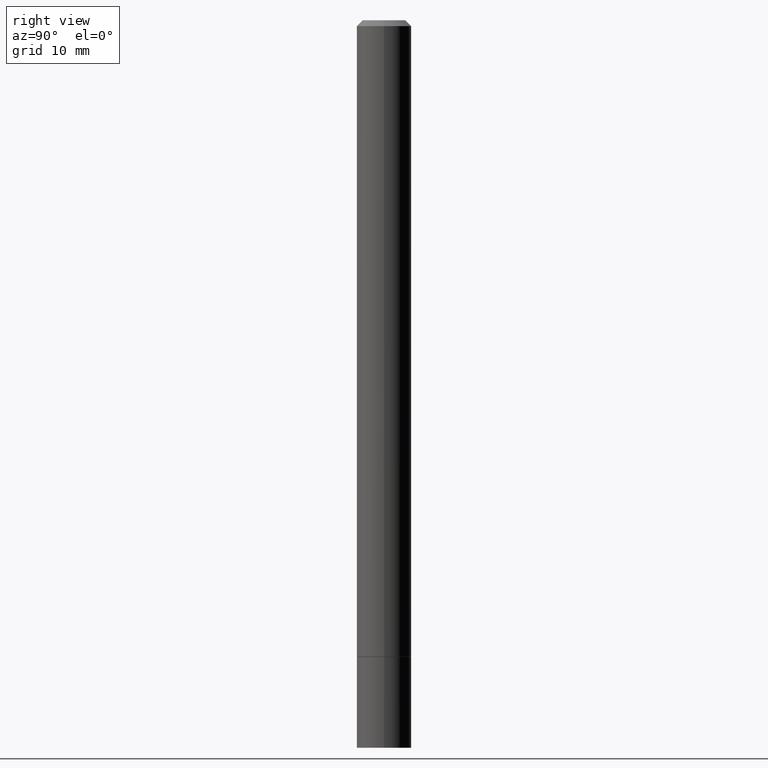
[diagram: clean part render]
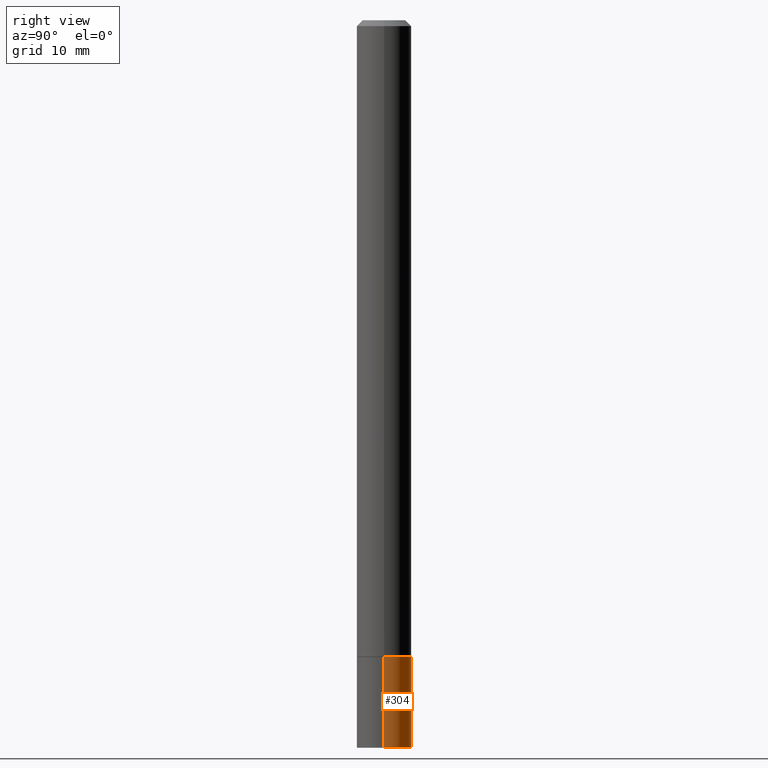
[diagram: same view with one face highlighted and labeled with its STEP entity id]
A machine part, right view. The second image highlights one B-rep face of the part: STEP entity #304.
In plain terms, the highlighted cylindrical surface (edge-blend (fillet) strip) has radius 2.3812 mm, axis along (-0, 0, 1).
Its self-contained STEP definition (entity closure, byte-faithful):
#1 = DIRECTION ( 'NONE',  ( -2.445468806185136597E-29, 3.491481338843145583E-15, 1.000000000000000000 ) ) ;
#16 = VERTEX_POINT ( 'NONE', #342 ) ;
#22 = EDGE_CURVE ( 'NONE', #264, #46, #40, .T. ) ;
#29 = AXIS2_PLACEMENT_3D ( 'NONE', #196, #1, #88 ) ;
#30 = FACE_OUTER_BOUND ( 'NONE', #345, .T. ) ;
#36 = CARTESIAN_POINT ( 'NONE',  ( 6.113672015462842613E-29, -8.728703347107864943E-15, -2.500000000000000000 ) ) ;
#40 = LINE ( 'NONE', #343, #272 ) ;
#46 = VERTEX_POINT ( 'NONE', #269 ) ;
#76 = CIRCLE ( 'NONE', #29, 0.09374999999999998612 ) ;
#88 = DIRECTION ( 'NONE',  ( 1.000000000000000000, -6.982962677686263555E-15, 0.000000000000000000 ) ) ;
#95 = DIRECTION ( 'NONE',  ( -2.445468806185136877E-29, 3.491481338843145188E-15, 1.000000000000000000 ) ) ;
#96 = CYLINDRICAL_SURFACE ( 'NONE', #303, 0.09374999999999998612 ) ;
#104 = VECTOR ( 'NONE', #118, 39.37007874015748143 ) ;
#113 = EDGE_CURVE ( 'NONE', #214, #16, #313, .T. ) ;
#118 = DIRECTION ( 'NONE',  ( -2.445468806185136877E-29, 3.491481338843145188E-15, 1.000000000000000000 ) ) ;
#172 = DIRECTION ( 'NONE',  ( 1.000000000000000000, -6.982962677686266711E-15, 4.876176775795935793E-29 ) ) ;
#174 = CARTESIAN_POINT ( 'NONE',  ( -0.09374999999999998612, 6.661338147750938256E-16, -4.611501647113973295E-30 ) ) ;
#192 = EDGE_CURVE ( 'NONE', #264, #214, #319, .T. ) ;
#196 = CARTESIAN_POINT ( 'NONE',  ( 5.349463013529986305E-29, -7.637615428719381825E-15, -2.187500000000000000 ) ) ;
#204 = AXIS2_PLACEMENT_3D ( 'NONE', #36, #309, #366 ) ;
#214 = VERTEX_POINT ( 'NONE', #338 ) ;
#244 = CARTESIAN_POINT ( 'NONE',  ( 0.09374999999999998612, -9.383356098140953236E-15, -2.500000000000000000 ) ) ;
#247 = ORIENTED_EDGE ( 'NONE', *, *, #22, .F. ) ;
#264 = VERTEX_POINT ( 'NONE', #244 ) ;
#269 = CARTESIAN_POINT ( 'NONE',  ( 0.09374999999999998612, -8.292268179752468540E-15, -2.187500000000000000 ) ) ;
#272 = VECTOR ( 'NONE', #95, 39.37007874015748143 ) ;
#273 = CARTESIAN_POINT ( 'NONE',  ( 0.000000000000000000, 0.000000000000000000, 0.000000000000000000 ) ) ;
#294 = ORIENTED_EDGE ( 'NONE', *, *, #113, .T. ) ;
#299 = ORIENTED_EDGE ( 'NONE', *, *, #314, .F. ) ;
#303 = AXIS2_PLACEMENT_3D ( 'NONE', #273, #335, #172 ) ;
#304 = ADVANCED_FACE ( 'NONE', ( #30 ), #96, .T. ) ;
#309 = DIRECTION ( 'NONE',  ( -2.445468806185136597E-29, 3.491481338843145583E-15, 1.000000000000000000 ) ) ;
#313 = LINE ( 'NONE', #174, #104 ) ;
#314 = EDGE_CURVE ( 'NONE', #46, #16, #76, .T. ) ;
#319 = CIRCLE ( 'NONE', #204, 0.09374999999999998612 ) ;
#335 = DIRECTION ( 'NONE',  ( -2.445468806185136597E-29, 3.491481338843145583E-15, 1.000000000000000000 ) ) ;
#338 = CARTESIAN_POINT ( 'NONE',  ( -0.09374999999999998612, -7.517025573138528671E-15, -2.500000000000000000 ) ) ;
#342 = CARTESIAN_POINT ( 'NONE',  ( -0.09374999999999998612, -7.517025573138528671E-15, -2.187500000000000000 ) ) ;
#343 = CARTESIAN_POINT ( 'NONE',  ( 0.09374999999999998612, -6.546527510330874055E-16, 4.571415727308689105E-30 ) ) ;
#345 = EDGE_LOOP ( 'NONE', ( #353, #294, #299, #247 ) ) ;
#353 = ORIENTED_EDGE ( 'NONE', *, *, #192, .T. ) ;
#366 = DIRECTION ( 'NONE',  ( 1.000000000000000000, -6.982962677686273810E-15, 0.000000000000000000 ) ) ;